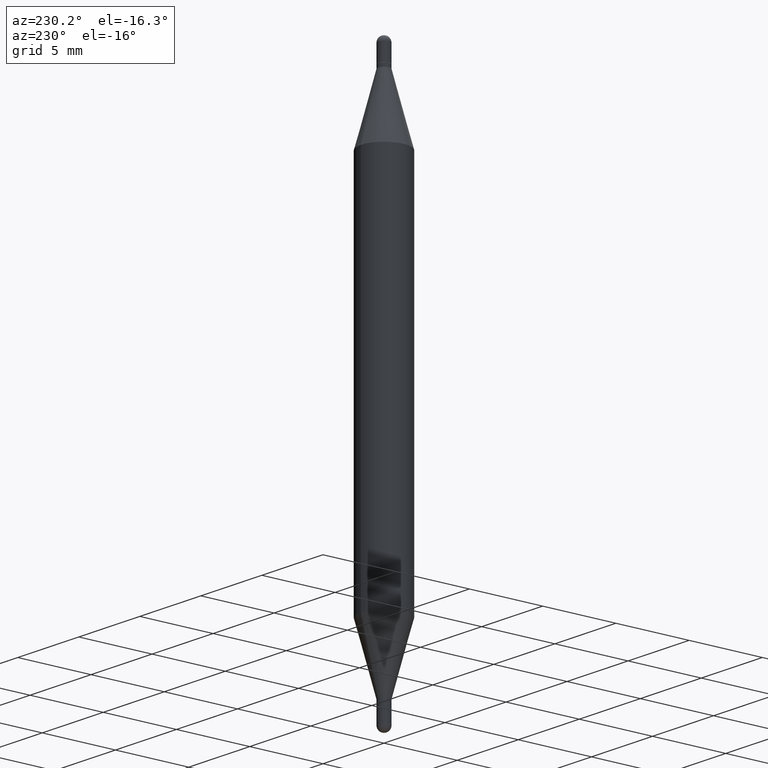
[diagram: clean part render]
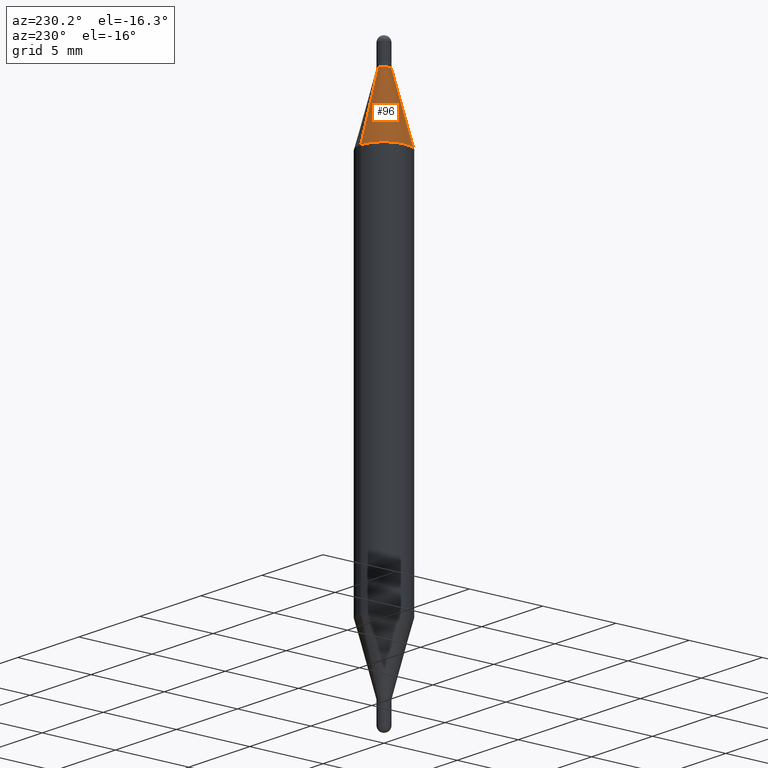
[diagram: same view with one face highlighted and labeled with its STEP entity id]
A machine part, auxiliary view. The second image highlights one B-rep face of the part: STEP entity #96.
In plain terms, the highlighted conical surface has half-angle 15 deg.
Its self-contained STEP definition (entity closure, byte-faithful):
#64 = DIRECTION ( 'NONE',  ( 2.448365453507603651E-29, 3.483762630810528106E-15, 1.000000000000000000 ) ) ;
#96 = ADVANCED_FACE ( 'NONE', ( #187 ), #459, .T. ) ;
#97 = CARTESIAN_POINT ( 'NONE',  ( 3.496265867608858858E-29, -2.535088175682956501E-16, -0.07199999999999993905 ) ) ;
#135 = VECTOR ( 'NONE', #458, 39.37007874015748854 ) ;
#187 = FACE_OUTER_BOUND ( 'NONE', #786, .T. ) ;
#236 = DIRECTION ( 'NONE',  ( -6.982962677686265133E-15, -1.000000000000000000, 3.283471146231123028E-15 ) ) ;
#242 = LINE ( 'NONE', #580, #378 ) ;
#315 = CARTESIAN_POINT ( 'NONE',  ( 3.496265867608858858E-29, -2.535088175682956501E-16, -0.07199999999999993905 ) ) ;
#323 = DIRECTION ( 'NONE',  ( 2.448365453507603651E-29, 3.483762630810528106E-15, 1.000000000000000000 ) ) ;
#378 = VECTOR ( 'NONE', #929, 39.37007874015748143 ) ;
#383 = ORIENTED_EDGE ( 'NONE', *, *, #658, .F. ) ;
#404 = ORIENTED_EDGE ( 'NONE', *, *, #492, .F. ) ;
#419 = ORIENTED_EDGE ( 'NONE', *, *, #683, .T. ) ;
#427 = VERTEX_POINT ( 'NONE', #895 ) ;
#440 = DIRECTION ( 'NONE',  ( -6.982962677686265133E-15, -1.000000000000000000, 3.283471146231123028E-15 ) ) ;
#458 = DIRECTION ( 'NONE',  ( -1.807323732225327773E-15, -0.2588190451025246253, -0.9659258262890670910 ) ) ;
#459 = CONICAL_SURFACE ( 'NONE', #753, 0.01559999999999982234, 0.2617993877991499629 ) ;
#474 = ORIENTED_EDGE ( 'NONE', *, *, #565, .T. ) ;
#492 = EDGE_CURVE ( 'NONE', #427, #904, #813, .T. ) ;
#544 = AXIS2_PLACEMENT_3D ( 'NONE', #315, #323, #236 ) ;
#565 = EDGE_CURVE ( 'NONE', #1096, #904, #620, .T. ) ;
#566 = DIRECTION ( 'NONE',  ( -6.982962677686265922E-15, -1.000000000000000000, 3.278217592397116257E-15 ) ) ;
#580 = CARTESIAN_POINT ( 'NONE',  ( 1.070237687652696216E-16, 0.01559999999999956734, -0.07199999999999999456 ) ) ;
#609 = CARTESIAN_POINT ( 'NONE',  ( 4.287811248607512910E-16, 0.06249999999999911876, -0.2470331828749807723 ) ) ;
#620 = CIRCLE ( 'NONE', #695, 0.06249999999999999306 ) ;
#658 = EDGE_CURVE ( 'NONE', #1040, #427, #1049, .T. ) ;
#683 = EDGE_CURVE ( 'NONE', #1040, #1096, #242, .T. ) ;
#695 = AXIS2_PLACEMENT_3D ( 'NONE', #737, #64, #566 ) ;
#737 = CARTESIAN_POINT ( 'NONE',  ( 3.067720669440277841E-29, -8.632828792199796341E-16, -0.2470331828749805503 ) ) ;
#753 = AXIS2_PLACEMENT_3D ( 'NONE', #97, #790, #440 ) ;
#786 = EDGE_LOOP ( 'NONE', ( #383, #419, #474, #404 ) ) ;
#790 = DIRECTION ( 'NONE',  ( -2.448365453507603651E-29, -3.483762630810528106E-15, -1.000000000000000000 ) ) ;
#813 = LINE ( 'NONE', #1057, #135 ) ;
#875 = CARTESIAN_POINT ( 'NONE',  ( 1.070237687652701516E-16, 0.01559999999999956734, -0.07199999999999999456 ) ) ;
#895 = CARTESIAN_POINT ( 'NONE',  ( -1.089342177718695287E-16, -0.01560000000000007561, -0.07199999999999989742 ) ) ;
#904 = VERTEX_POINT ( 'NONE', #954 ) ;
#929 = DIRECTION ( 'NONE',  ( 1.775627540710963328E-15, 0.2588190451025179084, -0.9659258262890690894 ) ) ;
#954 = CARTESIAN_POINT ( 'NONE',  ( -4.364351673553608545E-16, -0.06250000000000086042, -0.2470331828749803005 ) ) ;
#1040 = VERTEX_POINT ( 'NONE', #875 ) ;
#1049 = CIRCLE ( 'NONE', #544, 0.01559999999999982234 ) ;
#1057 = CARTESIAN_POINT ( 'NONE',  ( -1.089342177718695287E-16, -0.01560000000000007561, -0.07199999999999989742 ) ) ;
#1096 = VERTEX_POINT ( 'NONE', #609 ) ;